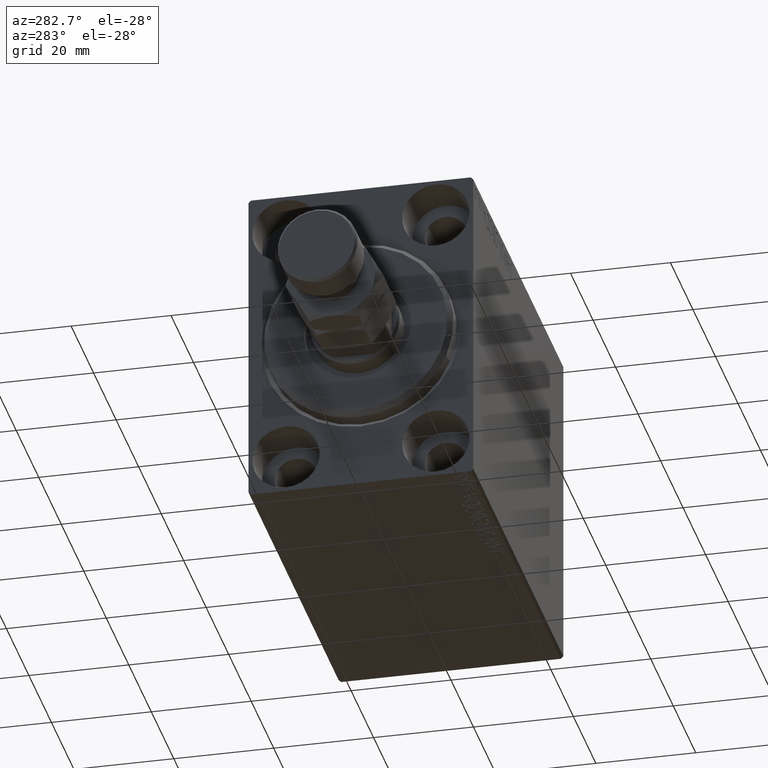
[diagram: clean part render]
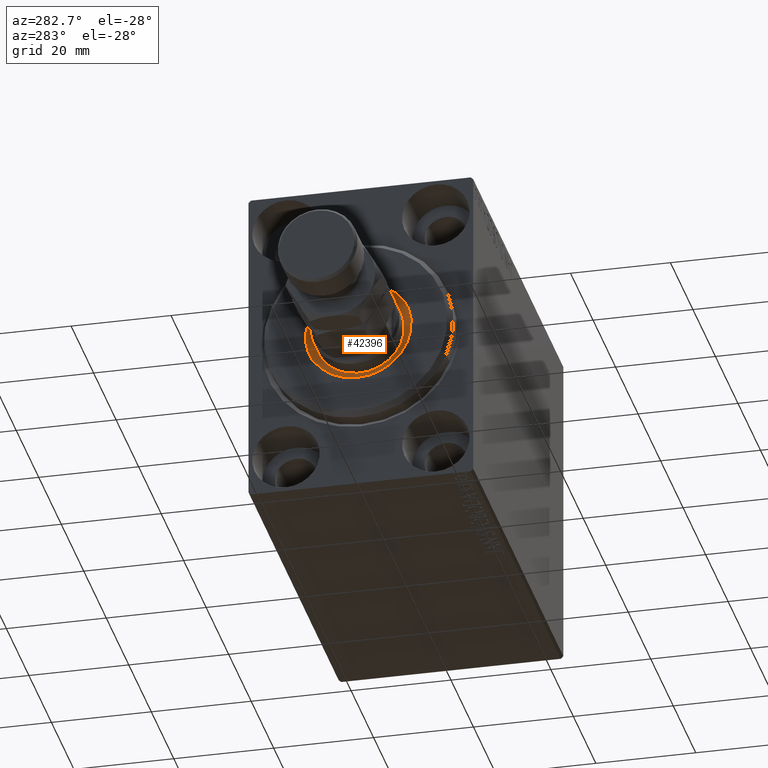
[diagram: same view with one face highlighted and labeled with its STEP entity id]
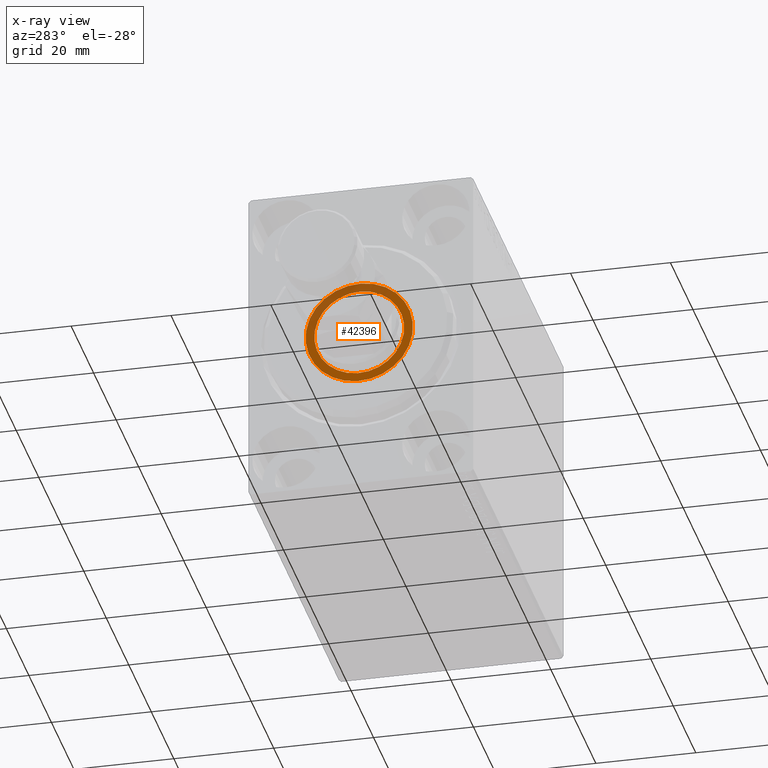
[diagram: x-ray of the same camera — body ghosted, the highlighted face saturated]
A machine part, auxiliary view. The second image highlights one B-rep face of the part: STEP entity #42396.
The next image is the same camera in x-ray: the body ghosted, the highlighted face saturated — about 33% of this face is hidden behind the body in this view.
In plain terms, the highlighted planar face has unit normal (-1, 0, 0).
Its self-contained STEP definition (entity closure, byte-faithful):
#199 = DIRECTION ( 'NONE',  ( 0.000000000000000000, 0.000000000000000000, -1.000000000000000000 ) ) ;
#720 = ORIENTED_EDGE ( 'NONE', *, *, #8625, .F. ) ;
#2462 = DIRECTION ( 'NONE',  ( 1.000000000000000000, 0.000000000000000000, 0.000000000000000000 ) ) ;
#2476 = DIRECTION ( 'NONE',  ( 0.000000000000000000, 0.000000000000000000, -1.000000000000000000 ) ) ;
#2975 = FACE_OUTER_BOUND ( 'NONE', #5906, .T. ) ;
#4963 = AXIS2_PLACEMENT_3D ( 'NONE', #37170, #20389, #2476 ) ;
#5906 = EDGE_LOOP ( 'NONE', ( #26297, #38056 ) ) ;
#6436 = VERTEX_POINT ( 'NONE', #11195 ) ;
#8625 = EDGE_CURVE ( 'NONE', #21905, #8820, #30794, .T. ) ;
#8820 = VERTEX_POINT ( 'NONE', #13696 ) ;
#9166 = EDGE_CURVE ( 'NONE', #24322, #6436, #9515, .T. ) ;
#9515 = CIRCLE ( 'NONE', #42566, 10.75000000000000000 ) ;
#10103 = DIRECTION ( 'NONE',  ( 0.000000000000000000, 0.000000000000000000, -1.000000000000000000 ) ) ;
#11195 = CARTESIAN_POINT ( 'NONE',  ( 1.500000000000000000, 1.316495309083404223E-15, -10.75000000000000000 ) ) ;
#13544 = CARTESIAN_POINT ( 'NONE',  ( 1.499999999999999556, 0.000000000000000000, 0.000000000000000000 ) ) ;
#13696 = CARTESIAN_POINT ( 'NONE',  ( 1.499999999999999556, 1.102182119232617517E-15, 9.000000000000000000 ) ) ;
#15941 = CIRCLE ( 'NONE', #4963, 10.75000000000000000 ) ;
#17217 = EDGE_CURVE ( 'NONE', #8820, #21905, #24216, .T. ) ;
#17223 = CARTESIAN_POINT ( 'NONE',  ( 1.500000000000000000, 0.000000000000000000, 10.75000000000000000 ) ) ;
#17404 = CARTESIAN_POINT ( 'NONE',  ( 1.500000000000000000, 0.000000000000000000, 0.000000000000000000 ) ) ;
#19374 = CARTESIAN_POINT ( 'NONE',  ( 1.499999999999999556, 0.000000000000000000, -9.000000000000000000 ) ) ;
#20389 = DIRECTION ( 'NONE',  ( 1.000000000000000000, 0.000000000000000000, 0.000000000000000000 ) ) ;
#20668 = FACE_BOUND ( 'NONE', #26846, .T. ) ;
#21905 = VERTEX_POINT ( 'NONE', #19374 ) ;
#22799 = DIRECTION ( 'NONE',  ( 1.000000000000000000, 0.000000000000000000, 0.000000000000000000 ) ) ;
#24216 = CIRCLE ( 'NONE', #38897, 9.000000000000000000 ) ;
#24322 = VERTEX_POINT ( 'NONE', #17223 ) ;
#24983 = PLANE ( 'NONE',  #36798 ) ;
#26297 = ORIENTED_EDGE ( 'NONE', *, *, #9166, .T. ) ;
#26846 = EDGE_LOOP ( 'NONE', ( #720, #45262 ) ) ;
#27456 = EDGE_CURVE ( 'NONE', #6436, #24322, #15941, .T. ) ;
#30020 = DIRECTION ( 'NONE',  ( 0.000000000000000000, 0.000000000000000000, -1.000000000000000000 ) ) ;
#30244 = CARTESIAN_POINT ( 'NONE',  ( 1.499999999999999556, 0.000000000000000000, 0.000000000000000000 ) ) ;
#30794 = CIRCLE ( 'NONE', #35940, 9.000000000000000000 ) ;
#34457 = CARTESIAN_POINT ( 'NONE',  ( 1.500000000000000000, 0.000000000000000000, 0.000000000000000000 ) ) ;
#35940 = AXIS2_PLACEMENT_3D ( 'NONE', #30244, #2462, #30020 ) ;
#36798 = AXIS2_PLACEMENT_3D ( 'NONE', #17404, #45248, #199 ) ;
#37170 = CARTESIAN_POINT ( 'NONE',  ( 1.500000000000000000, 0.000000000000000000, 0.000000000000000000 ) ) ;
#37902 = DIRECTION ( 'NONE',  ( 0.000000000000000000, 0.000000000000000000, -1.000000000000000000 ) ) ;
#38056 = ORIENTED_EDGE ( 'NONE', *, *, #27456, .T. ) ;
#38897 = AXIS2_PLACEMENT_3D ( 'NONE', #13544, #41571, #10103 ) ;
#41571 = DIRECTION ( 'NONE',  ( 1.000000000000000000, 0.000000000000000000, 0.000000000000000000 ) ) ;
#42396 = ADVANCED_FACE ( 'NONE', ( #20668, #2975 ), #24983, .T. ) ;
#42566 = AXIS2_PLACEMENT_3D ( 'NONE', #34457, #22799, #37902 ) ;
#45248 = DIRECTION ( 'NONE',  ( 1.000000000000000000, 0.000000000000000000, 0.000000000000000000 ) ) ;
#45262 = ORIENTED_EDGE ( 'NONE', *, *, #17217, .F. ) ;